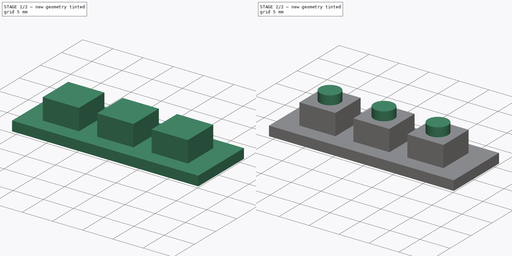
[diagram: build sequence overview — one tinted view per stage of 2, left to right]
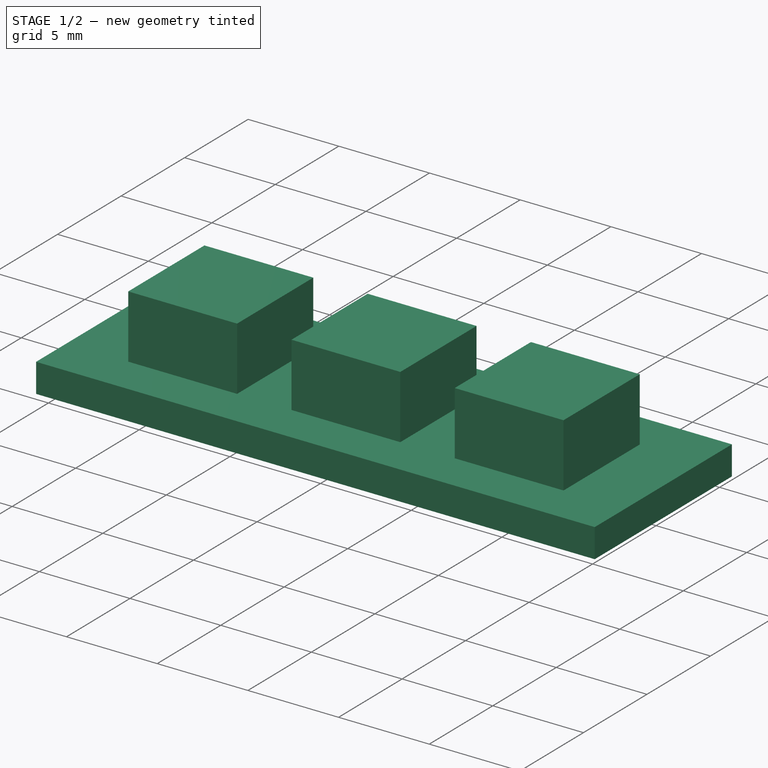
[diagram: stage 1 of 2 — iso view after this stage's code; geometry added in this stage tinted green]
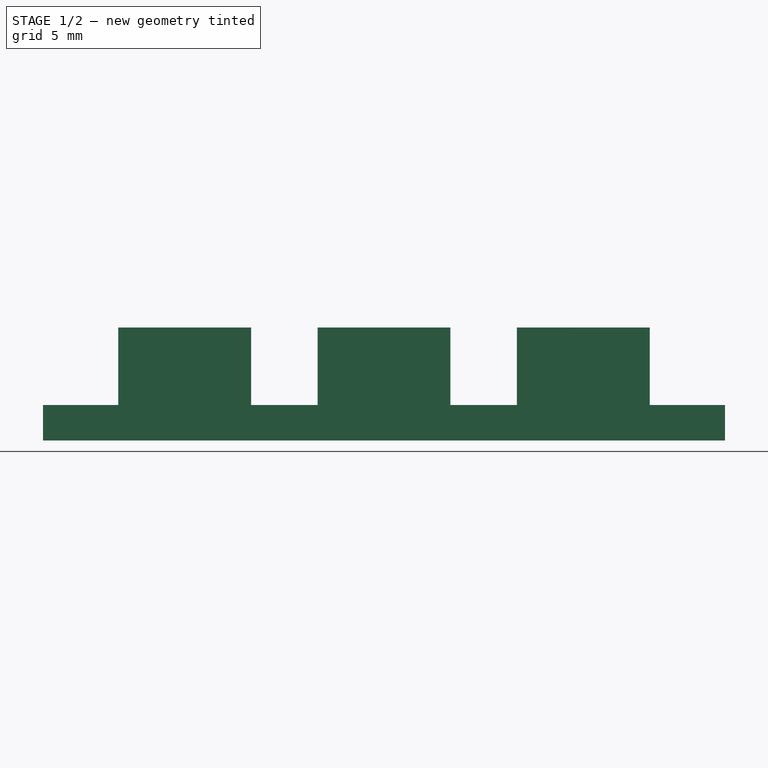
[diagram: stage 1 of 2 — front view after this stage's code; geometry added in this stage tinted green]
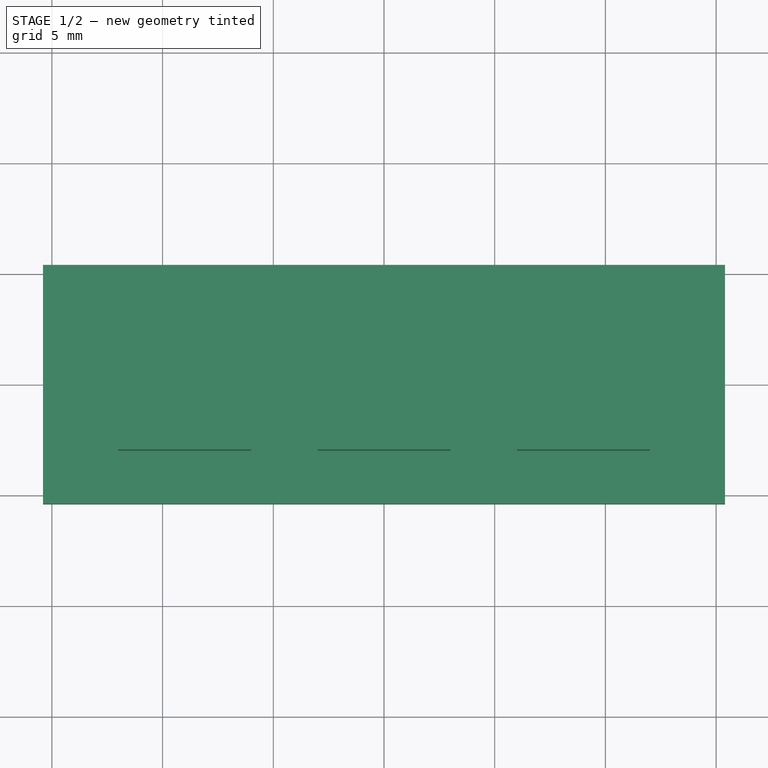
[diagram: stage 1 of 2 — top view after this stage's code; geometry added in this stage tinted green]
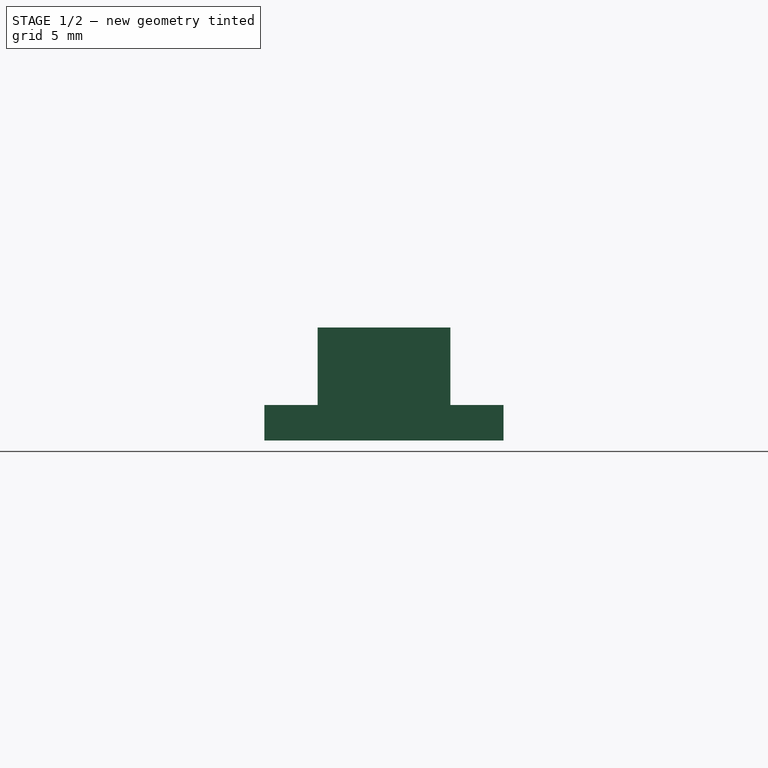
[diagram: stage 1 of 2 — right view after this stage's code; geometry added in this stage tinted green]
FCSTD DOCUMENT  (FreeCAD 0.16R5206 (Git))
Label: buttons
License: CreativeCommons Attribution-ShareAlike
LicenseURL: http://creativecommons.org/licenses/by-sa/4.0/
objects: Sketcher::SketchObject×3, PartDesign::Pad×3
note: 9 computed .brp shape members not serialized (recipe doc carries the construction recipe); baked Part::Feature solids carry a one-line shape summary decoded from their .brp

FEATURE [Sketcher::SketchObject] Sketch
  sketch-geometry (4):
    g0: LineSegment StartX=-15.4 StartY=5.4 StartZ=0 EndX=15.4 EndY=5.4 EndZ=0
    g1: LineSegment StartX=15.4 StartY=5.4 StartZ=0 EndX=15.4 EndY=-5.4 EndZ=0
    g2: LineSegment StartX=15.4 StartY=-5.4 StartZ=0 EndX=-15.4 EndY=-5.4 EndZ=0
    g3: LineSegment StartX=-15.4 StartY=-5.4 StartZ=0 EndX=-15.4 EndY=5.4 EndZ=0
  constraints (11):
    c: Coincident(g0,g1)
    c: Coincident(g1,g2)
    c: Coincident(g2,g3)
    c: Coincident(g3,g0)
    c: Horizontal(g0)
    c: Horizontal(g2)
    c: Vertical(g1)
    c: Vertical(g3)
    c: DistanceX(g0) = 30.8
    c: DistanceY(g1) = -10.8
    c: Symmetric(g1,g0,g-1)
FEATURE [PartDesign::Pad] Pad
  Length = 1.6
  Length2 = 100
  Reversed = true
  Sketch = -> Sketch
  Type = 0
FEATURE [Sketcher::SketchObject] Sketch001
  Support = -> Pad [Face5]
  sketch-geometry (12):
    g0: LineSegment StartX=-12 StartY=3 StartZ=0 EndX=-6 EndY=3 EndZ=0
    g1: LineSegment StartX=-6 StartY=3 StartZ=0 EndX=-6 EndY=-3 EndZ=0
    g2: LineSegment StartX=-6 StartY=-3 StartZ=0 EndX=-12 EndY=-3 EndZ=0
    g3: LineSegment StartX=-12 StartY=-3 StartZ=0 EndX=-12 EndY=3 EndZ=0
    g4: LineSegment StartX=-3 StartY=3 StartZ=0 EndX=3 EndY=3 EndZ=0
    g5: LineSegment StartX=3 StartY=3 StartZ=0 EndX=3 EndY=-3 EndZ=0
    g6: LineSegment StartX=3 StartY=-3 StartZ=0 EndX=-3 EndY=-3 EndZ=0
    g7: LineSegment StartX=-3 StartY=-3 StartZ=0 EndX=-3 EndY=3 EndZ=0
    g8: LineSegment StartX=6 StartY=3 StartZ=0 EndX=12 EndY=3 EndZ=0
    g9: LineSegment StartX=12 StartY=3 StartZ=0 EndX=12 EndY=-3 EndZ=0
    g10: LineSegment StartX=12 StartY=-3 StartZ=0 EndX=6 EndY=-3 EndZ=0
    g11: LineSegment StartX=6 StartY=-3 StartZ=0 EndX=6 EndY=3 EndZ=0
  constraints (35):
    c: Coincident(g0,g1)
    c: Coincident(g1,g2)
    c: Coincident(g2,g3)
    c: Coincident(g3,g0)
    c: Horizontal(g0)
    c: Horizontal(g2)
    c: Vertical(g1)
    c: Vertical(g3)
    c: Coincident(g4,g5)
    c: Coincident(g5,g6)
    c: Coincident(g6,g7)
    c: Coincident(g7,g4)
    c: Horizontal(g4)
    c: Horizontal(g6)
    c: Vertical(g5)
    c: Vertical(g7)
    c: Coincident(g8,g9)
    c: Coincident(g9,g10)
    c: Coincident(g10,g11)
    c: Coincident(g11,g8)
    c: Horizontal(g8)
    c: Horizontal(g10)
    c: Vertical(g9)
    c: Vertical(g11)
    c: Symmetric(g4,g5,g-1)
    c: Equal(g4,g5)
    c: Equal(g5,g8)
    c: Equal(g8,g11)
    c: Equal(g11,g0)
    c: Equal(g0,g1)
    c: DistanceX(g4) = 6
    c: Symmetric(g10,g8,g-1)
    c: Symmetric(g0,g1,g-1)
    c: DistanceX(g4,g8) = 3
    c: DistanceX(g0,g4) = 3
FEATURE [PartDesign::Pad] Pad001
  Length = 3.5
  Length2 = 100
  Sketch = -> Sketch001
  Type = 0
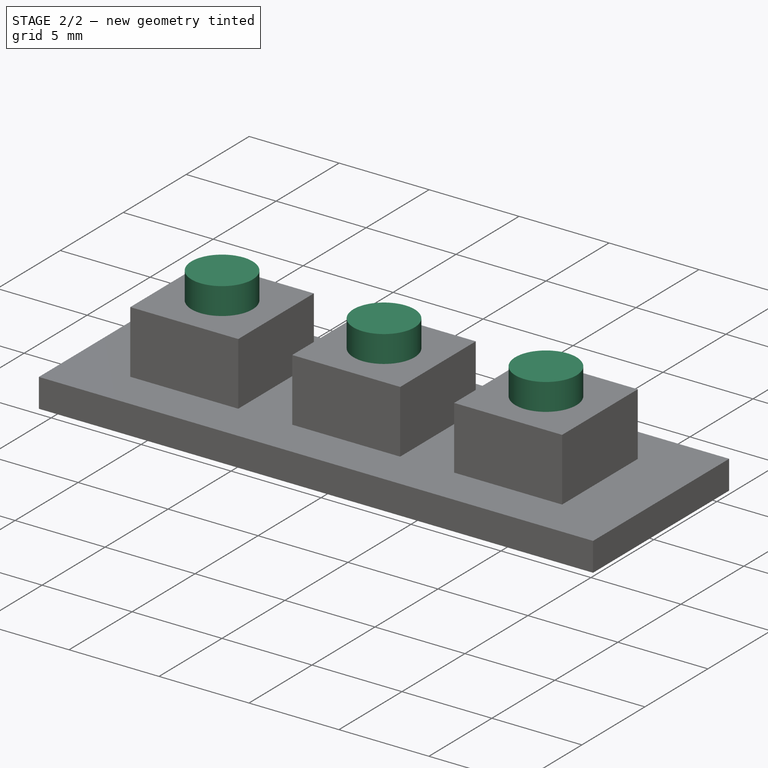
[diagram: stage 2 of 2 — iso view after this stage's code; geometry added in this stage tinted green]
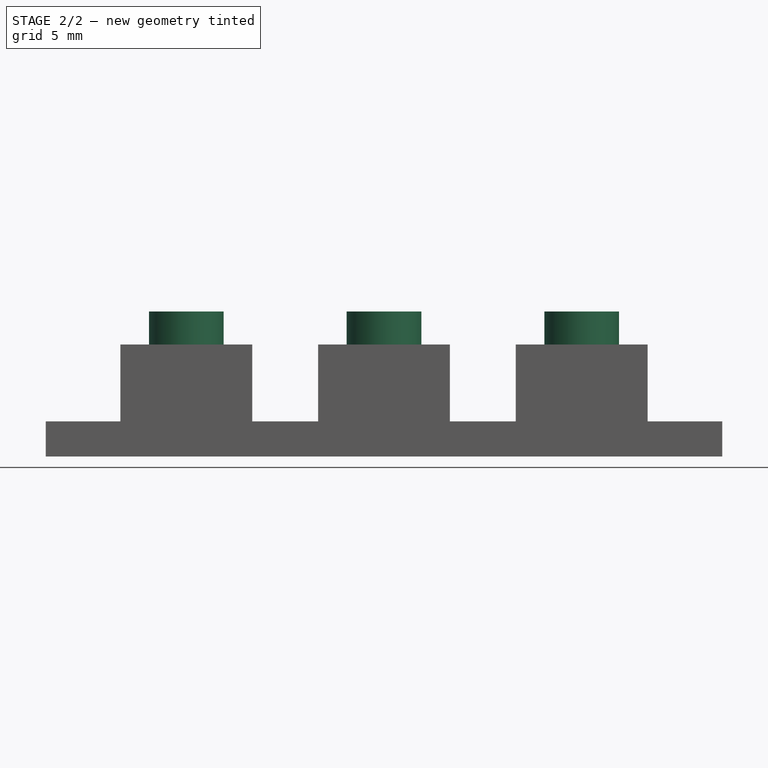
[diagram: stage 2 of 2 — front view after this stage's code; geometry added in this stage tinted green]
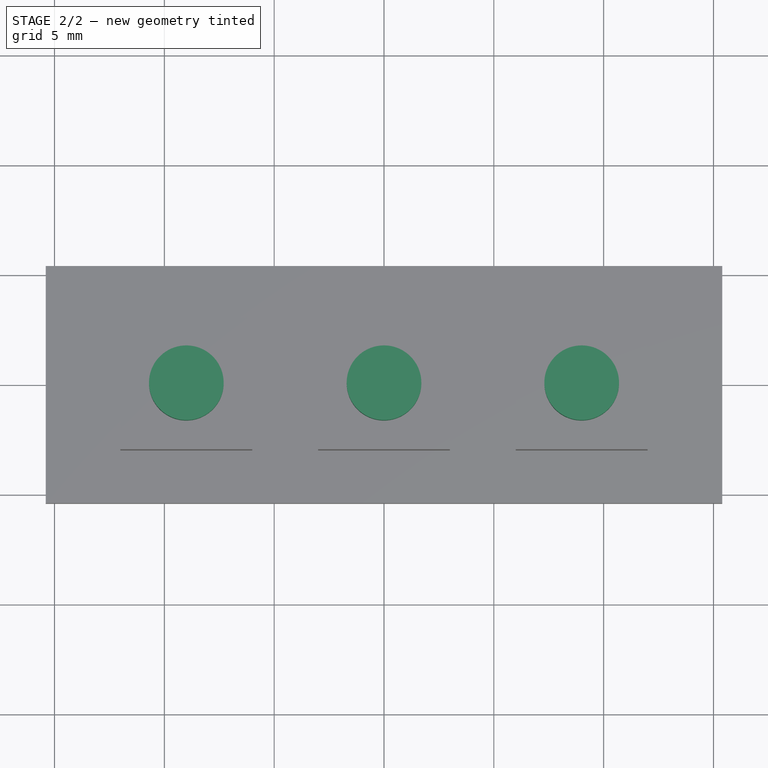
[diagram: stage 2 of 2 — top view after this stage's code; geometry added in this stage tinted green]
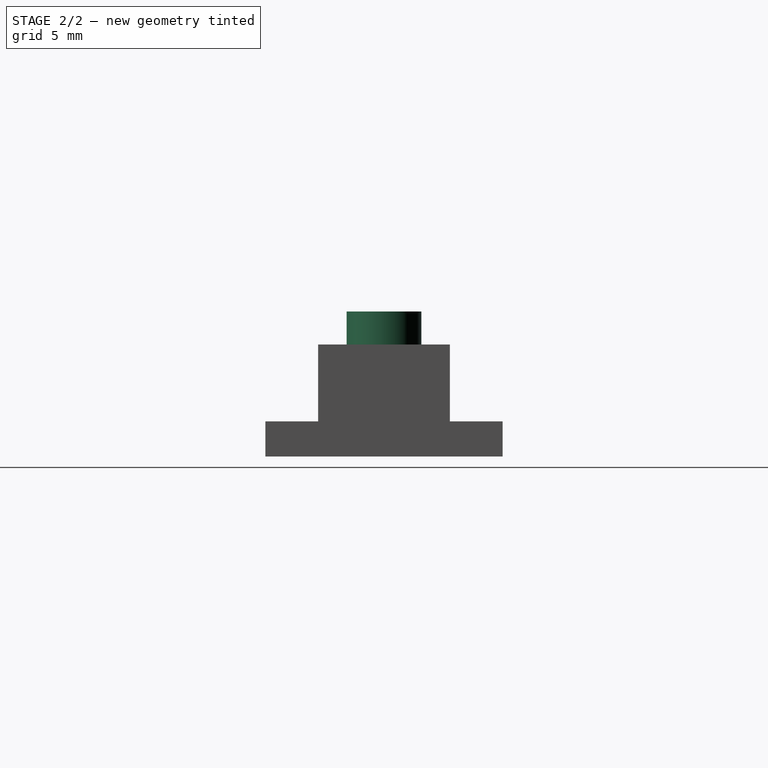
[diagram: stage 2 of 2 — right view after this stage's code; geometry added in this stage tinted green]
FEATURE [Sketcher::SketchObject] Sketch002
  ExternalGeometry = -> [Pad001]
  Placement = pos=(0,0,3.5) rot=(0,0,1;0rad)
  Support = -> Pad001 [Face20]
  sketch-geometry (3):
    g0: Circle CenterX=-9 CenterY=0 CenterZ=0 NormalX=0 NormalY=0 NormalZ=1 Radius=1.7
    g1: Circle CenterX=0 CenterY=0 CenterZ=0 NormalX=0 NormalY=0 NormalZ=1 Radius=1.7
    g2: Circle CenterX=9 CenterY=0 CenterZ=0 NormalX=0 NormalY=0 NormalZ=1 Radius=1.7
  constraints (6):
    c: Coincident(g1,g-1)
    c: Symmetric(g-3,g-4,g0)
    c: Symmetric(g-5,g-6,g2)
    c: Equal(g0,g1)
    c: Equal(g1,g2)
    c: Radius(g1) = 1.7
FEATURE [PartDesign::Pad] Pad002  label="buttons"
  Length = 1.5
  Length2 = 100
  Sketch = -> Sketch002
  Type = 0
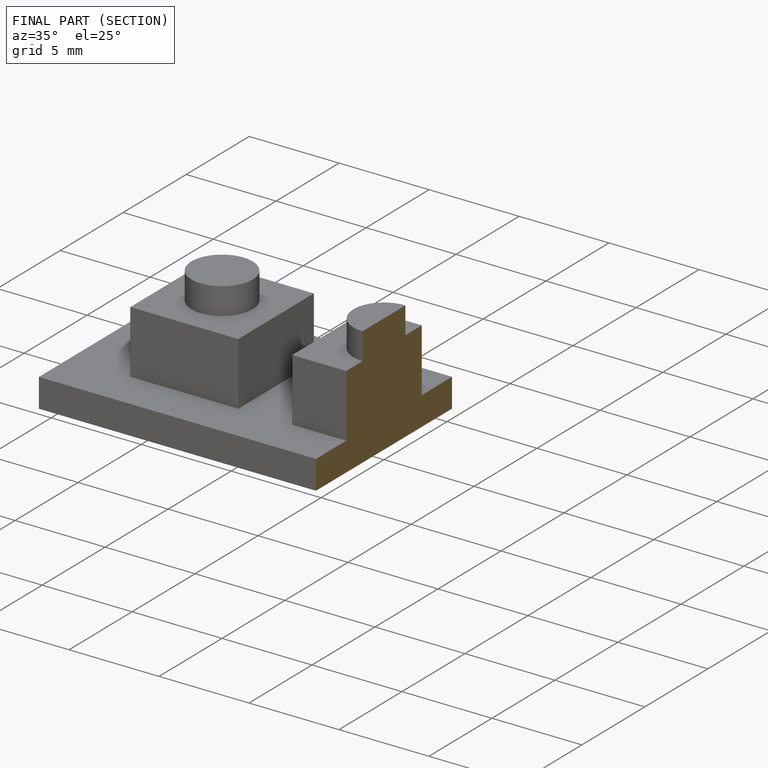
[diagram: finished part — half-section view (interior)]
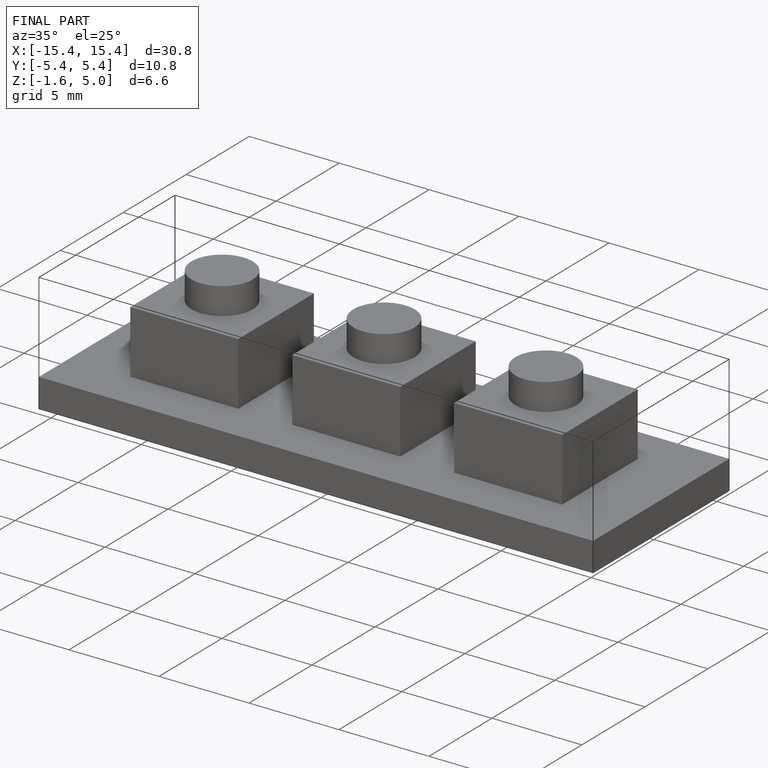
[diagram: finished part — iso view with bounding-box wireframe]
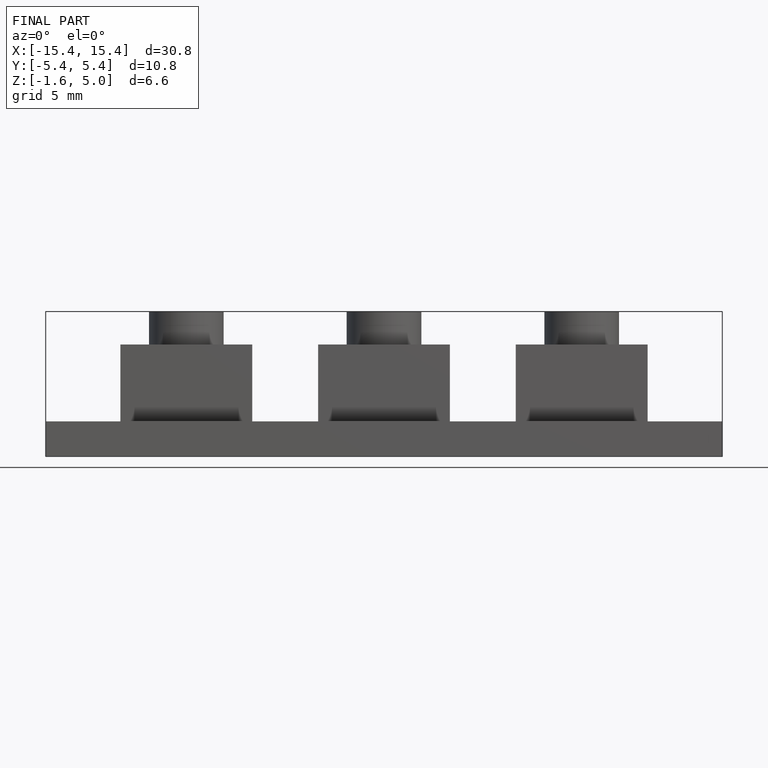
[diagram: finished part — front view with bounding-box wireframe]
